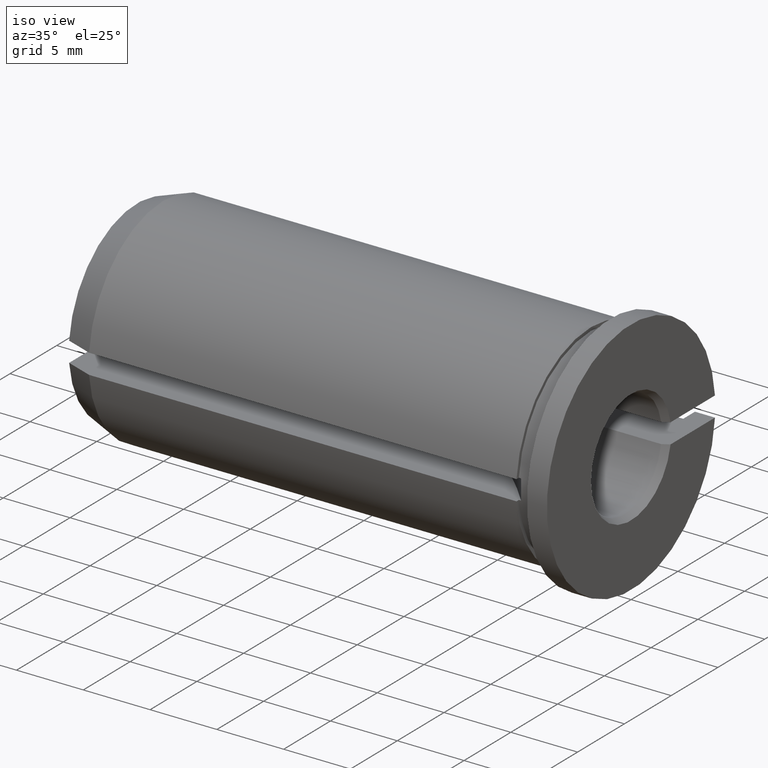
[diagram: clean part render]
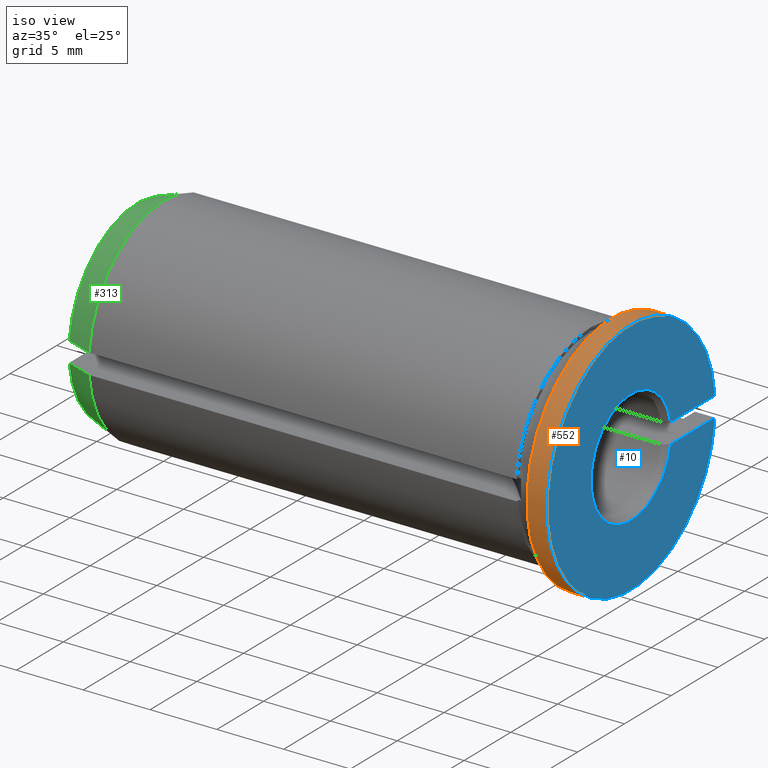
[diagram: same view with three faces highlighted in distinct colors, each labeled with its STEP entity id]
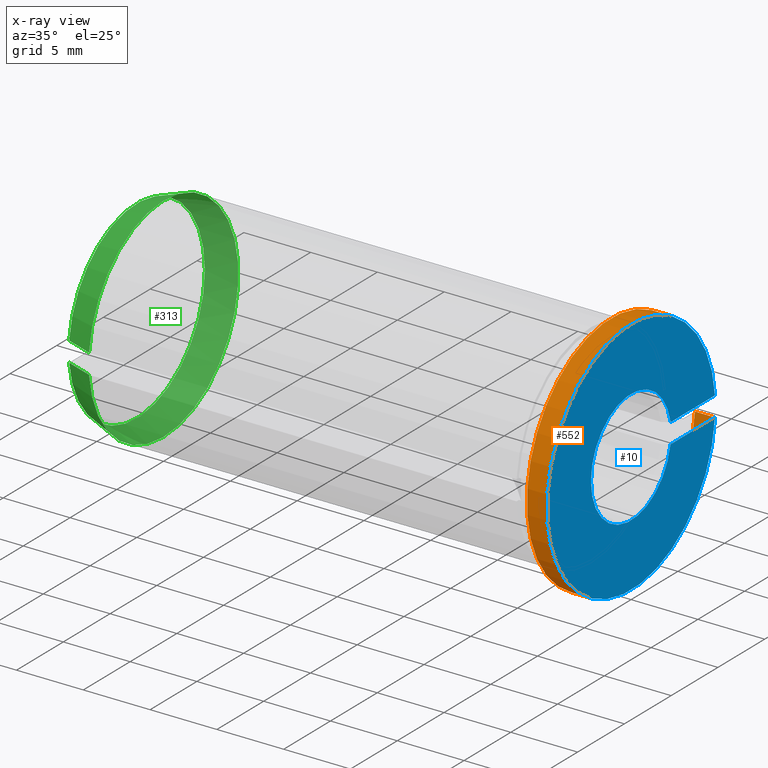
[diagram: x-ray of the same camera — body ghosted, the three highlighted faces saturated]
A machine part, iso view with three faces highlighted in distinct colors.
The next image is the same camera in x-ray (body ghosted, the three faces saturated) — at least one of them is partly hidden behind the body in this view.
Their STEP definitions:

[orange] entity #552 — the highlighted cylindrical surface (partial cylindrical patch) has radius 9 mm, axis along (-1, -0, -0).
#2 = DIRECTION ( 'NONE',  ( 1.000000000000000000, 0.0000000000000000000, 0.0000000000000000000 ) ) ;
#20 = ORIENTED_EDGE ( 'NONE', *, *, #525, .T. ) ;
#26 = CIRCLE ( 'NONE', #416, 9.000000000000000000 ) ;
#33 = EDGE_CURVE ( 'NONE', #113, #174, #187, .T. ) ;
#64 = LINE ( 'NONE', #494, #431 ) ;
#87 = FACE_OUTER_BOUND ( 'NONE', #477, .T. ) ;
#96 = CARTESIAN_POINT ( 'NONE',  ( -38.58775536857143600, 0.0000000000000000000, 0.0000000000000000000 ) ) ;
#113 = VERTEX_POINT ( 'NONE', #357 ) ;
#165 = AXIS2_PLACEMENT_3D ( 'NONE', #96, #289, #447 ) ;
#171 = CARTESIAN_POINT ( 'NONE',  ( 0.0000000000000000000, 8.968695557326048700, -0.7500000000000000000 ) ) ;
#174 = VERTEX_POINT ( 'NONE', #205 ) ;
#179 = CYLINDRICAL_SURFACE ( 'NONE', #165, 9.000000000000000000 ) ;
#187 = LINE ( 'NONE', #402, #463 ) ;
#205 = CARTESIAN_POINT ( 'NONE',  ( 0.0000000000000000000, 8.968695557326048700, 0.7500000000000000000 ) ) ;
#231 = EDGE_CURVE ( 'NONE', #430, #113, #26, .T. ) ;
#266 = DIRECTION ( 'NONE',  ( -1.000000000000000000, -0.0000000000000000000, -0.0000000000000000000 ) ) ;
#282 = VERTEX_POINT ( 'NONE', #171 ) ;
#289 = DIRECTION ( 'NONE',  ( -1.000000000000000000, -0.0000000000000000000, -0.0000000000000000000 ) ) ;
#318 = DIRECTION ( 'NONE',  ( 0.0000000000000000000, 0.0000000000000000000, 1.000000000000000000 ) ) ;
#321 = EDGE_CURVE ( 'NONE', #282, #174, #483, .T. ) ;
#322 = DIRECTION ( 'NONE',  ( -1.000000000000000000, -0.0000000000000000000, -0.0000000000000000000 ) ) ;
#357 = CARTESIAN_POINT ( 'NONE',  ( -1.500000000000001300, 8.968695557326048700, 0.7500000000000000000 ) ) ;
#402 = CARTESIAN_POINT ( 'NONE',  ( -38.58775536857143600, 8.968695557326048700, 0.7500000000000000000 ) ) ;
#416 = AXIS2_PLACEMENT_3D ( 'NONE', #419, #322, #425 ) ;
#419 = CARTESIAN_POINT ( 'NONE',  ( -1.500000000000001300, 0.0000000000000000000, 0.0000000000000000000 ) ) ;
#425 = DIRECTION ( 'NONE',  ( 0.0000000000000000000, 0.0000000000000000000, 1.000000000000000000 ) ) ;
#430 = VERTEX_POINT ( 'NONE', #589 ) ;
#431 = VECTOR ( 'NONE', #645, 1000.000000000000000 ) ;
#447 = DIRECTION ( 'NONE',  ( 0.0000000000000000000, 0.0000000000000000000, 1.000000000000000000 ) ) ;
#455 = ORIENTED_EDGE ( 'NONE', *, *, #321, .T. ) ;
#463 = VECTOR ( 'NONE', #2, 1000.000000000000000 ) ;
#477 = EDGE_LOOP ( 'NONE', ( #586, #20, #455, #532 ) ) ;
#483 = CIRCLE ( 'NONE', #619, 9.000000000000000000 ) ;
#494 = CARTESIAN_POINT ( 'NONE',  ( -38.58775536857143600, 8.968695557326048700, -0.7500000000000000000 ) ) ;
#525 = EDGE_CURVE ( 'NONE', #430, #282, #64, .T. ) ;
#532 = ORIENTED_EDGE ( 'NONE', *, *, #33, .F. ) ;
#552 = ADVANCED_FACE ( 'NONE', ( #87 ), #179, .T. ) ;
#571 = CARTESIAN_POINT ( 'NONE',  ( 0.0000000000000000000, 0.0000000000000000000, 0.0000000000000000000 ) ) ;
#586 = ORIENTED_EDGE ( 'NONE', *, *, #231, .F. ) ;
#589 = CARTESIAN_POINT ( 'NONE',  ( -1.500000000000001300, 8.968695557326048700, -0.7500000000000000000 ) ) ;
#619 = AXIS2_PLACEMENT_3D ( 'NONE', #571, #266, #318 ) ;
#645 = DIRECTION ( 'NONE',  ( 1.000000000000000000, 0.0000000000000000000, 0.0000000000000000000 ) ) ;

[blue] entity #10 — the highlighted planar face has unit normal (-1, 0, -0).
#10 = ADVANCED_FACE ( 'NONE', ( #371 ), #45, .F. ) ;
#24 = DIRECTION ( 'NONE',  ( 0.0000000000000000000, 0.0000000000000000000, 1.000000000000000000 ) ) ;
#45 = PLANE ( 'NONE',  #315 ) ;
#49 = DIRECTION ( 'NONE',  ( 0.0000000000000000000, -1.000000000000000000, 0.0000000000000000000 ) ) ;
#97 = DIRECTION ( 'NONE',  ( -1.000000000000000000, 0.0000000000000000000, -0.0000000000000000000 ) ) ;
#109 = CARTESIAN_POINT ( 'NONE',  ( 0.0000000000000000000, 4.288675134594814000, 0.7500000000000000000 ) ) ;
#125 = VECTOR ( 'NONE', #510, 1000.000000000000000 ) ;
#148 = ORIENTED_EDGE ( 'NONE', *, *, #265, .T. ) ;
#149 = CARTESIAN_POINT ( 'NONE',  ( 0.0000000000000000000, 4.288675134594814000, -0.7500000000000000000 ) ) ;
#171 = CARTESIAN_POINT ( 'NONE',  ( 0.0000000000000000000, 8.968695557326048700, -0.7500000000000000000 ) ) ;
#174 = VERTEX_POINT ( 'NONE', #205 ) ;
#186 = CARTESIAN_POINT ( 'NONE',  ( 0.0000000000000000000, 4.288675134594814000, 0.0000000000000000000 ) ) ;
#205 = CARTESIAN_POINT ( 'NONE',  ( 0.0000000000000000000, 8.968695557326048700, 0.7500000000000000000 ) ) ;
#220 = CARTESIAN_POINT ( 'NONE',  ( 0.0000000000000000000, 0.0000000000000000000, 0.0000000000000000000 ) ) ;
#227 = ORIENTED_EDGE ( 'NONE', *, *, #321, .F. ) ;
#253 = LINE ( 'NONE', #109, #125 ) ;
#265 = EDGE_CURVE ( 'NONE', #291, #544, #576, .T. ) ;
#266 = DIRECTION ( 'NONE',  ( -1.000000000000000000, -0.0000000000000000000, -0.0000000000000000000 ) ) ;
#268 = VECTOR ( 'NONE', #49, 1000.000000000000000 ) ;
#282 = VERTEX_POINT ( 'NONE', #171 ) ;
#285 = EDGE_LOOP ( 'NONE', ( #227, #522, #148, #523 ) ) ;
#291 = VERTEX_POINT ( 'NONE', #468 ) ;
#315 = AXIS2_PLACEMENT_3D ( 'NONE', #186, #97, #448 ) ;
#318 = DIRECTION ( 'NONE',  ( 0.0000000000000000000, 0.0000000000000000000, 1.000000000000000000 ) ) ;
#321 = EDGE_CURVE ( 'NONE', #282, #174, #483, .T. ) ;
#371 = FACE_OUTER_BOUND ( 'NONE', #285, .T. ) ;
#406 = LINE ( 'NONE', #149, #268 ) ;
#423 = DIRECTION ( 'NONE',  ( -1.000000000000000000, -0.0000000000000000000, -0.0000000000000000000 ) ) ;
#448 = DIRECTION ( 'NONE',  ( -0.0000000000000000000, 0.0000000000000000000, 1.000000000000000000 ) ) ;
#468 = CARTESIAN_POINT ( 'NONE',  ( 0.0000000000000000000, 4.222586222931609800, -0.7500000000000000000 ) ) ;
#483 = CIRCLE ( 'NONE', #619, 9.000000000000000000 ) ;
#510 = DIRECTION ( 'NONE',  ( 0.0000000000000000000, -1.000000000000000000, 0.0000000000000000000 ) ) ;
#522 = ORIENTED_EDGE ( 'NONE', *, *, #528, .T. ) ;
#523 = ORIENTED_EDGE ( 'NONE', *, *, #656, .F. ) ;
#528 = EDGE_CURVE ( 'NONE', #282, #291, #406, .T. ) ;
#544 = VERTEX_POINT ( 'NONE', #595 ) ;
#571 = CARTESIAN_POINT ( 'NONE',  ( 0.0000000000000000000, 0.0000000000000000000, 0.0000000000000000000 ) ) ;
#576 = CIRCLE ( 'NONE', #593, 4.288675134594814000 ) ;
#593 = AXIS2_PLACEMENT_3D ( 'NONE', #220, #423, #24 ) ;
#595 = CARTESIAN_POINT ( 'NONE',  ( 0.0000000000000000000, 4.222586222931609800, 0.7500000000000000000 ) ) ;
#619 = AXIS2_PLACEMENT_3D ( 'NONE', #571, #266, #318 ) ;
#656 = EDGE_CURVE ( 'NONE', #174, #544, #253, .T. ) ;

[green] entity #313 — the highlighted conical surface has half-angle 20 deg.
#3 = ORIENTED_EDGE ( 'NONE', *, *, #13, .T. ) ;
#13 = EDGE_CURVE ( 'NONE', #35, #378, #535, .T. ) ;
#30 = AXIS2_PLACEMENT_3D ( 'NONE', #575, #367, #326 ) ;
#35 = VERTEX_POINT ( 'NONE', #106 ) ;
#92 = CARTESIAN_POINT ( 'NONE',  ( -37.00000000000000000, -7.233280709968929600, 0.7500000000000000000 ) ) ;
#104 = CIRCLE ( 'NONE', #480, 7.999999999999996400 ) ;
#106 = CARTESIAN_POINT ( 'NONE',  ( -34.99999999999999300, -7.964766161036994400, -0.7500000000000000000 ) ) ;
#135 = AXIS2_PLACEMENT_3D ( 'NONE', #647, #600, #295 ) ;
#177 = CARTESIAN_POINT ( 'NONE',  ( -34.99999999999999300, 0.0000000000000000000, 0.0000000000000000000 ) ) ;
#234 = CARTESIAN_POINT ( 'NONE',  ( -35.66670157318046800, -7.721033177172921000, 0.7500000000000000000 ) ) ;
#237 = CARTESIAN_POINT ( 'NONE',  ( -34.99999999999999300, -7.964766161036994400, 0.7500000000000000000 ) ) ;
#279 = DIRECTION ( 'NONE',  ( 0.0000000000000000000, 0.0000000000000000000, 1.000000000000000000 ) ) ;
#281 = CARTESIAN_POINT ( 'NONE',  ( -37.00000000000000000, -7.233280709968929600, -0.7500000000000000000 ) ) ;
#288 = CARTESIAN_POINT ( 'NONE',  ( -34.99999999999999300, -7.964766161036994400, -0.7500000000000000000 ) ) ;
#295 = DIRECTION ( 'NONE',  ( 0.0000000000000000000, 0.0000000000000000000, 1.000000000000000000 ) ) ;
#313 = ADVANCED_FACE ( 'NONE', ( #621 ), #340, .T. ) ;
#326 = DIRECTION ( 'NONE',  ( 0.0000000000000000000, 0.0000000000000000000, -1.000000000000000000 ) ) ;
#336 = ORIENTED_EDGE ( 'NONE', *, *, #573, .F. ) ;
#340 = CONICAL_SURFACE ( 'NONE', #30, 7.999999999999996400, 0.3490658503988667300 ) ;
#342 = EDGE_LOOP ( 'NONE', ( #521, #3, #336, #415 ) ) ;
#367 = DIRECTION ( 'NONE',  ( 1.000000000000000000, 0.0000000000000000000, 0.0000000000000000000 ) ) ;
#378 = VERTEX_POINT ( 'NONE', #520 ) ;
#389 = CARTESIAN_POINT ( 'NONE',  ( -35.66670157318046800, -7.721033177172921000, -0.7500000000000000000 ) ) ;
#397 = CARTESIAN_POINT ( 'NONE',  ( -37.00000000000000000, -7.233280709968929600, 0.7500000000000000000 ) ) ;
#407 = VERTEX_POINT ( 'NONE', #487 ) ;
#415 = ORIENTED_EDGE ( 'NONE', *, *, #507, .F. ) ;
#466 = EDGE_CURVE ( 'NONE', #407, #35, #104, .T. ) ;
#480 = AXIS2_PLACEMENT_3D ( 'NONE', #177, #583, #279 ) ;
#482 = B_SPLINE_CURVE_WITH_KNOTS ( 'NONE', 3,
 ( #237, #234, #597, #92 ),
 .UNSPECIFIED., .F., .F.,
 ( 4, 4 ),
 ( 0.009809443058718536300, 0.01193901348880657900 ),
 .UNSPECIFIED. ) ;
#487 = CARTESIAN_POINT ( 'NONE',  ( -34.99999999999999300, -7.964766161036994400, 0.7500000000000000000 ) ) ;
#507 = EDGE_CURVE ( 'NONE', #407, #579, #482, .T. ) ;
#520 = CARTESIAN_POINT ( 'NONE',  ( -37.00000000000000000, -7.233280709968929600, -0.7500000000000000000 ) ) ;
#521 = ORIENTED_EDGE ( 'NONE', *, *, #466, .T. ) ;
#535 = B_SPLINE_CURVE_WITH_KNOTS ( 'NONE', 3,
 ( #288, #389, #596, #281 ),
 .UNSPECIFIED., .F., .F.,
 ( 4, 4 ),
 ( 0.009809443058718536300, 0.01193901348880657900 ),
 .UNSPECIFIED. ) ;
#569 = CIRCLE ( 'NONE', #135, 7.272059531467589500 ) ;
#573 = EDGE_CURVE ( 'NONE', #579, #378, #569, .T. ) ;
#575 = CARTESIAN_POINT ( 'NONE',  ( -34.99999999999999300, 0.0000000000000000000, 0.0000000000000000000 ) ) ;
#579 = VERTEX_POINT ( 'NONE', #397 ) ;
#583 = DIRECTION ( 'NONE',  ( -1.000000000000000000, -0.0000000000000000000, -0.0000000000000000000 ) ) ;
#596 = CARTESIAN_POINT ( 'NONE',  ( -36.33337187508387700, -7.477214299549897800, -0.7500000000000000000 ) ) ;
#597 = CARTESIAN_POINT ( 'NONE',  ( -36.33337187508387700, -7.477214299549897800, 0.7500000000000000000 ) ) ;
#600 = DIRECTION ( 'NONE',  ( -1.000000000000000000, -0.0000000000000000000, -0.0000000000000000000 ) ) ;
#621 = FACE_OUTER_BOUND ( 'NONE', #342, .T. ) ;
#647 = CARTESIAN_POINT ( 'NONE',  ( -37.00000000000000000, 0.0000000000000000000, 0.0000000000000000000 ) ) ;